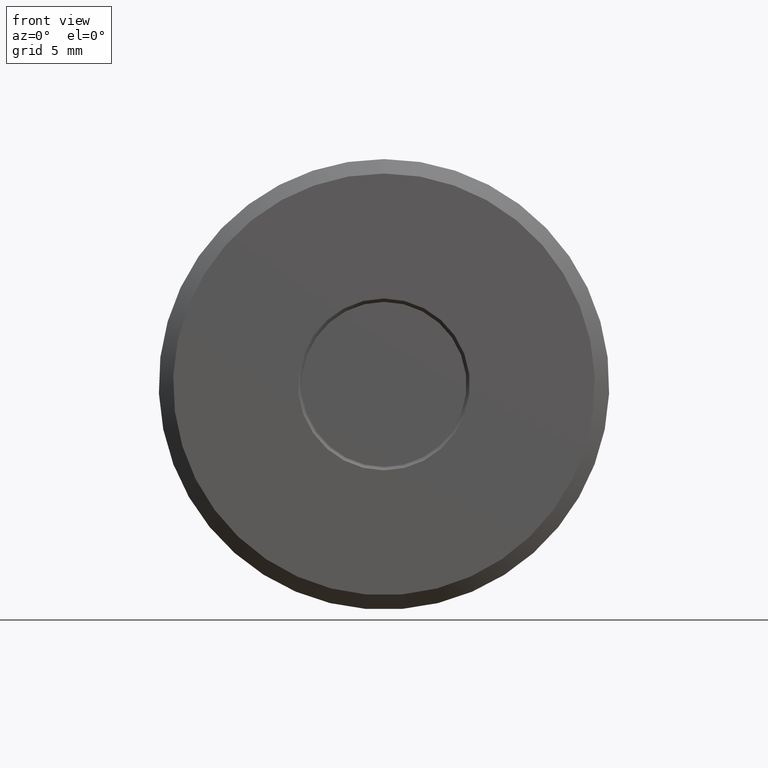
[diagram: clean part render]
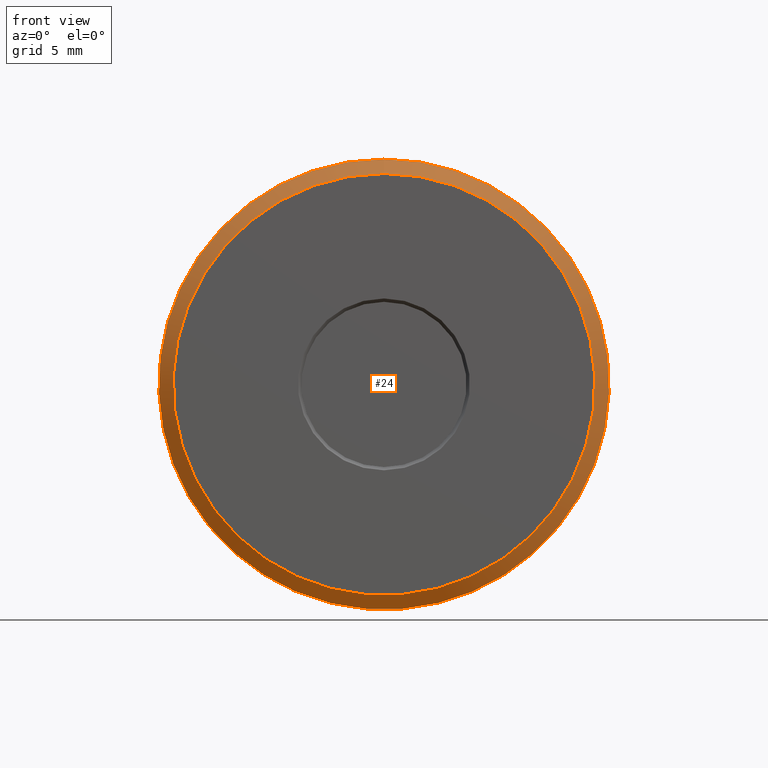
[diagram: same view with one face highlighted and labeled with its STEP entity id]
A machine part, front view. The second image highlights one B-rep face of the part: STEP entity #24.
In plain terms, the highlighted conical surface has half-angle 45 deg.
Its self-contained STEP definition (entity closure, byte-faithful):
#2 = VERTEX_POINT ( 'NONE', #375 ) ;
#24 = ADVANCED_FACE ( 'NONE', ( #40, #260 ), #365, .T. ) ;
#40 = FACE_BOUND ( 'NONE', #540, .T. ) ;
#58 = DIRECTION ( 'NONE',  ( 0.0000000000000000000, 0.0000000000000000000, 1.000000000000000000 ) ) ;
#69 = CIRCLE ( 'NONE', #331, 0.4387499999999999700 ) ;
#119 = DIRECTION ( 'NONE',  ( 0.0000000000000000000, 0.0000000000000000000, 1.000000000000000000 ) ) ;
#125 = DIRECTION ( 'NONE',  ( -0.0000000000000000000, 1.000000000000000000, -0.0000000000000000000 ) ) ;
#143 = DIRECTION ( 'NONE',  ( -0.0000000000000000000, 1.000000000000000000, -0.0000000000000000000 ) ) ;
#147 = CARTESIAN_POINT ( 'NONE',  ( 0.0000000000000000000, -4.886714801477222700E-017, 0.0000000000000000000 ) ) ;
#164 = AXIS2_PLACEMENT_3D ( 'NONE', #186, #125, #119 ) ;
#186 = CARTESIAN_POINT ( 'NONE',  ( 0.0000000000000000000, 0.03000000000000029400, 0.0000000000000000000 ) ) ;
#243 = VERTEX_POINT ( 'NONE', #349 ) ;
#254 = EDGE_CURVE ( 'NONE', #243, #243, #282, .T. ) ;
#260 = FACE_OUTER_BOUND ( 'NONE', #302, .T. ) ;
#282 = CIRCLE ( 'NONE', #164, 0.4687500000000000000 ) ;
#284 = ORIENTED_EDGE ( 'NONE', *, *, #538, .T. ) ;
#302 = EDGE_LOOP ( 'NONE', ( #435 ) ) ;
#331 = AXIS2_PLACEMENT_3D ( 'NONE', #147, #143, #58 ) ;
#349 = CARTESIAN_POINT ( 'NONE',  ( 0.0000000000000000000, 0.03000000000000029400, 0.4687500000000000000 ) ) ;
#365 = CONICAL_SURFACE ( 'NONE', #528, 0.4687500000000000000, 0.7853981633974429500 ) ;
#375 = CARTESIAN_POINT ( 'NONE',  ( 0.0000000000000000000, -4.886714801477222700E-017, 0.4387499999999999700 ) ) ;
#427 = DIRECTION ( 'NONE',  ( -0.0000000000000000000, 1.000000000000000000, -0.0000000000000000000 ) ) ;
#435 = ORIENTED_EDGE ( 'NONE', *, *, #254, .F. ) ;
#467 = DIRECTION ( 'NONE',  ( 0.0000000000000000000, 0.0000000000000000000, 1.000000000000000000 ) ) ;
#487 = CARTESIAN_POINT ( 'NONE',  ( 0.0000000000000000000, 0.03000000000000029400, 0.0000000000000000000 ) ) ;
#528 = AXIS2_PLACEMENT_3D ( 'NONE', #487, #427, #467 ) ;
#538 = EDGE_CURVE ( 'NONE', #2, #2, #69, .T. ) ;
#540 = EDGE_LOOP ( 'NONE', ( #284 ) ) ;